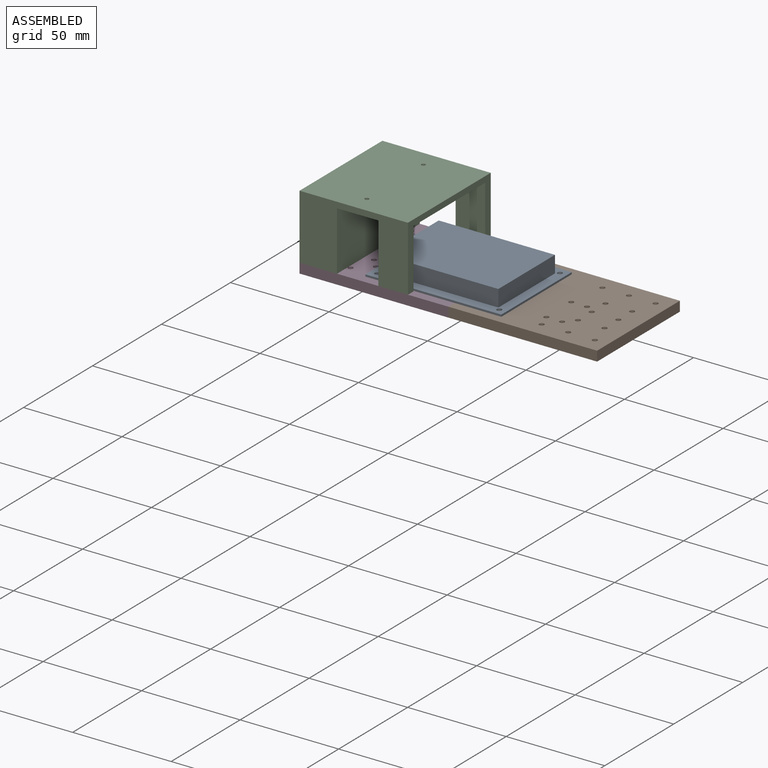
[diagram: assembled view]
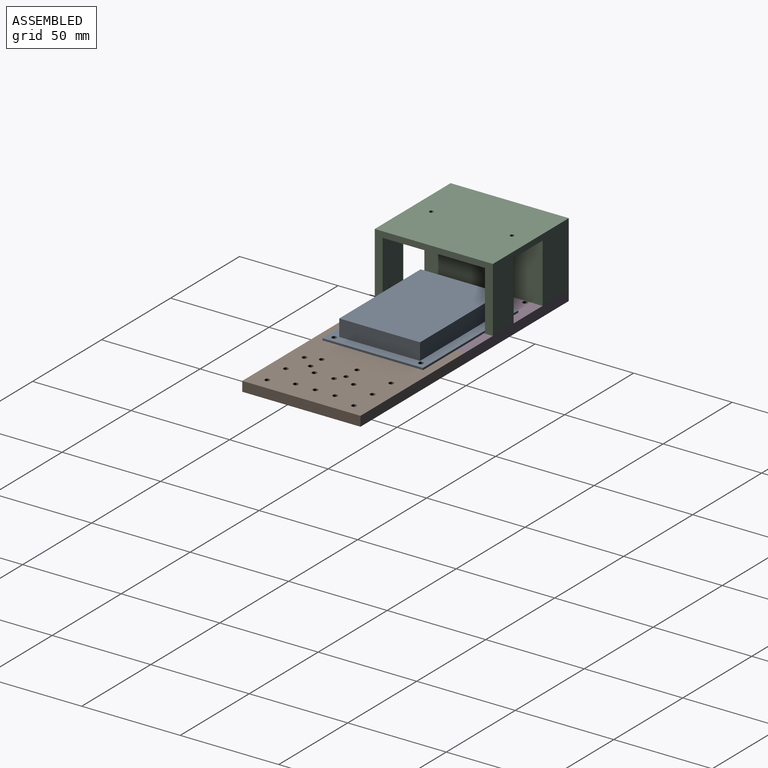
[diagram: assembled view, second angle]
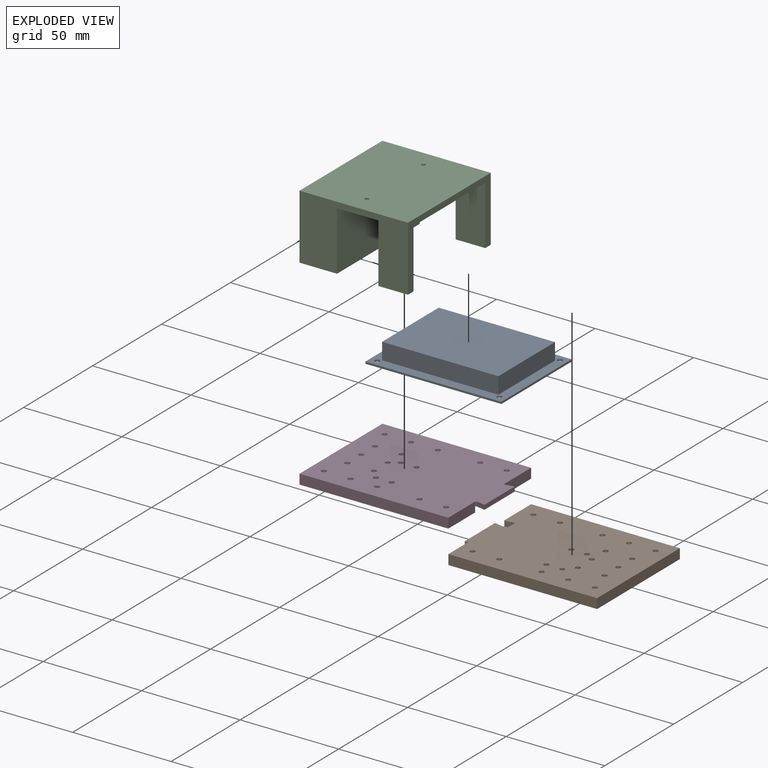
[diagram: exploded view]
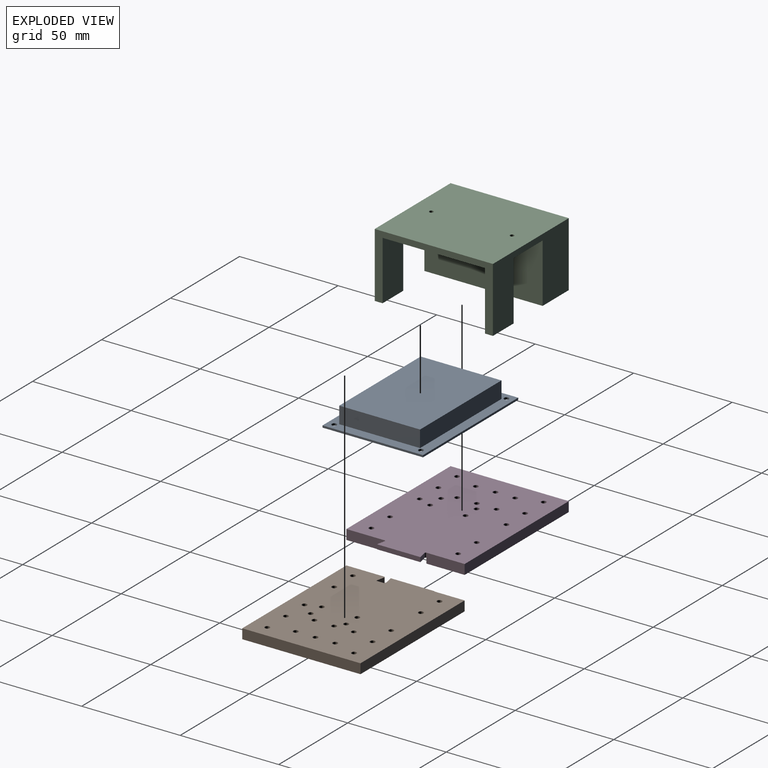
[diagram: exploded view, second angle]
ASSEMBLY  parts=4 mates=8
PART A: 15 faces, bbox 69x51x9.5 mm
  f0: plane 69x51mm, normal (0,0,1), area 1080.4mm2, adj f1,f2,f3,f4,f5,f6,f7,f8
  f1: plane 69x1mm, normal (0,1,0), area 69mm2, adj f0,f2,f8,f9
  f2: plane 51x1mm, normal (-1,0,0), area 51mm2, adj f0,f1,f3,f9
  f3: plane 69x1mm, normal (0,-1,0), area 69mm2, adj f0,f2,f8,f9
  f4: cylinder r=1.25mm len=2.5mm, axis (0,0,-1), area 7.9mm2, adj f0,f9
  f5: cylinder r=1.25mm len=2.5mm, axis (0,0,-1), area 7.9mm2, adj f0,f9
  f6: cylinder r=1.25mm len=2.5mm, axis (0,0,-1), area 7.9mm2, adj f0,f9
  f7: cylinder r=1.25mm len=2.5mm, axis (0,0,-1), area 7.9mm2, adj f0,f9
  f8: plane 51x1mm, normal (1,0,0), area 51mm2, adj f0,f1,f3,f9
  f9: plane 69x51mm, normal (0,0,-1), area 3499.4mm2, adj f1,f2,f3,f4,f5,f6,f7,f8
  f10: plane 59x8.5mm, normal (0,1,0), area 501.5mm2, adj f0,f11,f13,f14
  f11: plane 41x8.5mm, normal (-1,0,0), area 348.5mm2, adj f0,f10,f12,f14
  f12: plane 59x8.5mm, normal (0,-1,0), area 501.5mm2, adj f0,f11,f13,f14
  f13: plane 41x8.5mm, normal (1,0,0), area 348.5mm2, adj f0,f10,f12,f14
  f14: plane 59x41mm, normal (0,0,1), area 2419mm2, adj f10,f11,f12,f13
PART B: 40 faces, bbox 80.5x60x5 mm
  f0: plane 4.4x2.3mm, normal (-0.2,0.98,0), area 10.3mm2, adj f1,f4,f26,f35
  f1: cylinder r=0.5mm len=2.3mm, axis (0,0,-1), area 2mm2, adj f0,f5,f26,f35
  f2: cylinder r=0.5mm len=2.3mm, axis (0,0,-1), area 2mm2, adj f3,f9,f26,f35
  f3: plane 4.4x2.3mm, normal (-0.2,-0.98,0), area 10.3mm2, adj f2,f4,f26,f35
  f4: plane 22x2.3mm, normal (1,0,0), area 50.6mm2, adj f0,f3,f26,f35
  f5: plane 19.39x5mm, normal (1,0,0), area 97mm2, adj f1,f6,f26,f27,f34
  f6: plane 75.5x5mm, normal (0,1,0), area 377.5mm2, adj f5,f7,f26,f27
  f7: plane 60x5mm, normal (-1,0,0), area 300mm2, adj f6,f8,f26,f27
  f8: plane 75.5x5mm, normal (0,-1,0), area 377.5mm2, adj f7,f9,f26,f27
  f9: plane 19.39x5mm, normal (1,0,0), area 97mm2, adj f2,f8,f26,f27,f28
  f10: cylinder r=1.25mm len=5mm, axis (0,0,-1), area 39.3mm2, adj f26,f27
  f11: cylinder r=1.25mm len=5mm, axis (0,0,-1), area 39.3mm2, adj f26,f27
  f12: cylinder r=1.25mm len=5mm, axis (0,0,-1), area 39.3mm2, adj f26,f27
  f13: cylinder r=1.25mm len=5mm, axis (0,0,-1), area 39.3mm2, adj f26,f27
  f14: cylinder r=1.25mm len=5mm, axis (0,0,-1), area 39.3mm2, adj f26,f27
  f15: cylinder r=1.25mm len=5mm, axis (0,0,-1), area 39.3mm2, adj f26,f27
  f16: cylinder r=1.25mm len=5mm, axis (0,0,-1), area 39.3mm2, adj f26,f27
  f17: cylinder r=1.25mm len=5mm, axis (0,0,-1), area 39.3mm2, adj f26,f27
  f18: cylinder r=1.25mm len=5mm, axis (0,0,-1), area 39.3mm2, adj f26,f27
  f19: cylinder r=1.25mm len=5mm, axis (0,0,-1), area 39.3mm2, adj f26,f27
  f20: cylinder r=1.25mm len=5mm, axis (0,0,-1), area 39.3mm2, adj f26,f27
  f21: cylinder r=1.25mm len=5mm, axis (0,0,-1), area 39.3mm2, adj f26,f27
  f22: cylinder r=1.25mm len=5mm, axis (0,0,-1), area 39.3mm2, adj f26,f27
  f23: cylinder r=1.25mm len=5mm, axis (0,0,-1), area 39.3mm2, adj f26,f27
  f24: cylinder r=1.25mm len=5mm, axis (0,0,-1), area 39.3mm2, adj f26,f27
  f25: cylinder r=1.25mm len=5mm, axis (0,0,-1), area 39.3mm2, adj f26,f27
  f26: plane 80.5x60mm, normal (0,0,1), area 4537mm2, adj f0,f1,f2,f3,f4,f5,f6,f7
  f27: plane 75.5x60mm, normal (0,0,-1), area 4320mm2, adj f5,f6,f7,f8,f9,f10,f11,f12
  f28: plane 2.7x0.26mm, normal (0,1,0), area 0.7mm2, adj f9,f27,f29,f35
  f29: cylinder r=0.5mm len=2.7mm, axis (0,0,-1), area 1.7mm2, adj f27,f28,f30,f35
  f30: plane 4.4x2.7mm, normal (-0.2,0.98,0), area 12.1mm2, adj f27,f29,f31,f35
  f31: plane 22.48x2.7mm, normal (1,0,0), area 60.7mm2, adj f27,f30,f32,f35
  f32: plane 4.4x2.7mm, normal (-0.2,-0.98,0), area 12.1mm2, adj f27,f31,f33,f35
  f33: cylinder r=0.5mm len=2.7mm, axis (0,0,-1), area 1.7mm2, adj f27,f32,f34,f35
  f34: plane 2.7x0.26mm, normal (0,-1,0), area 0.7mm2, adj f5,f27,f33,f35
  f35: plane 22.48x10.2mm, normal (0,0,-1), area 217mm2, adj f0,f1,f2,f3,f4,f28,f29,f30
  f36: cylinder r=1.25mm len=5mm, axis (0,0,1), area 39.3mm2, adj f26,f27
  f37: cylinder r=1.25mm len=5mm, axis (0,0,1), area 39.3mm2, adj f26,f27
  f38: cylinder r=1.25mm len=5mm, axis (0,0,1), area 39.3mm2, adj f26,f27
  f39: cylinder r=1.25mm len=5mm, axis (0,0,1), area 39.3mm2, adj f26,f27
PART C: 26 faces, bbox 55x60x33 mm
  f0: plane 60x19mm, normal (0,0,1), area 1115.5mm2, adj f4,f5,f6,f9,f16,f18,f20,f22
  f1: plane 60x36mm, normal (0,0,1), area 2033.7mm2, adj f3,f4,f6,f7,f8,f9,f10,f11
  f2: plane 60x55mm, normal (0,0,-1), area 3293.7mm2, adj f3,f4,f5,f6,f7,f8
  f3: plane 60x33mm, normal (-1,0,0), area 420mm2, adj f1,f2,f4,f6,f10,f12,f14,f15
  f4: plane 55x33mm, normal (0,-1,0), area 1185mm2, adj f0,f1,f2,f3,f5,f9,f11,f12
  f5: plane 60x33mm, normal (1,0,0), area 1980mm2, adj f0,f2,f4,f6
  f6: plane 55x33mm, normal (0,1,0), area 1185mm2, adj f0,f1,f2,f3,f5,f9,f13,f15
  f7: cylinder r=1mm len=3mm, axis (0,0,-1), area 18.8mm2, adj f1,f2
  f8: cylinder r=1mm len=3mm, axis (0,0,-1), area 18.8mm2, adj f1,f2
  f9: plane 60x30mm, normal (-1,0,0), area 1800mm2, adj f0,f1,f4,f6
  f10: plane 30x15mm, normal (0,1,0), area 450mm2, adj f1,f3,f11,f12
  f11: plane 30x4mm, normal (1,0,0), area 120mm2, adj f1,f4,f10,f12
  f12: plane 15x4mm, normal (0,0,1), area 60mm2, adj f3,f4,f10,f11
  f13: plane 30x4mm, normal (1,0,0), area 120mm2, adj f1,f6,f14,f15
  f14: plane 30x15mm, normal (0,-1,0), area 450mm2, adj f1,f3,f13,f15
  f15: plane 15x4mm, normal (0,0,1), area 60mm2, adj f3,f6,f13,f14
  f16: cylinder r=1.25mm len=15mm, axis (0,0,1), area 117.8mm2, adj f0,f17
  f17: plane 2.5x2.5mm, normal (0,0,1), area 4.9mm2, adj f16
  f18: cylinder r=1.25mm len=15mm, axis (0,0,1), area 117.8mm2, adj f0,f19
  f19: plane 2.5x2.5mm, normal (0,0,1), area 4.9mm2, adj f18
  f20: cylinder r=1.25mm len=15mm, axis (0,0,1), area 117.8mm2, adj f0,f21
  f21: plane 2.5x2.5mm, normal (0,0,1), area 4.9mm2, adj f20
  f22: cylinder r=1.25mm len=15mm, axis (0,0,1), area 117.8mm2, adj f0,f23
  f23: plane 2.5x2.5mm, normal (0,0,1), area 4.9mm2, adj f22
  f24: cylinder r=1.25mm len=15mm, axis (0,0,1), area 117.8mm2, adj f0,f25
  f25: plane 2.5x2.5mm, normal (0,0,1), area 4.9mm2, adj f24
PART D: same geometry as B
PLACE A rot(axis=(-0.02,0,1),0deg) t=(25.9,-0.03,0)mm
PLACE B rot(axis=(0,-1,0),180deg) t=(74.4,-0.03,0)mm
PLACE C rot(axis=(0,-1,0),180deg) t=(-11.35,-0.03,33)mm
PLACE D rot(axis=(1,0,0),0deg) t=(-1.1,-0.03,-5)mm
MATE parallel A.f9 <-> D.f14  axis (0,0,-1) through (25.9,-0.03,0)mm
MATE fastened B.f8 <-> D.f8  axis (0,-1,0) through (36.65,-30.03,-2.5)mm
MATE planar C.f5 <-> D.f7  axis (-1,0,0) through (-38.85,-0.03,16.5)mm
MATE slider A.f6 <-> B.f14  axis (0,0,-1) through (56.9,-22.03,0)mm
MATE planar A.f9 <-> D.f26  axis (0,0,-1) through (25.9,-0.03,0)mm
MATE planar C.f0 <-> D.f11  axis (0,0,-1) through (-29.34,-0.03,0)mm
MATE planar D.f6 <-> C.f6  axis (0,1,0) through (-1.1,29.97,-2.5)mm
MATE parallel A.f9 <-> D.f26  axis (0,0,-1) through (25.9,-0.03,0)mm
